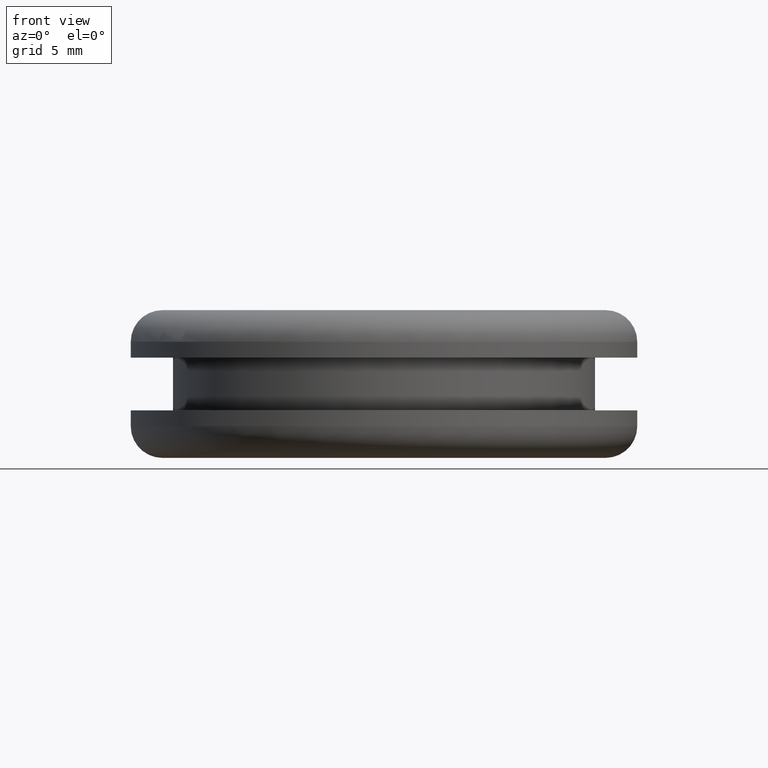
[diagram: clean part render]
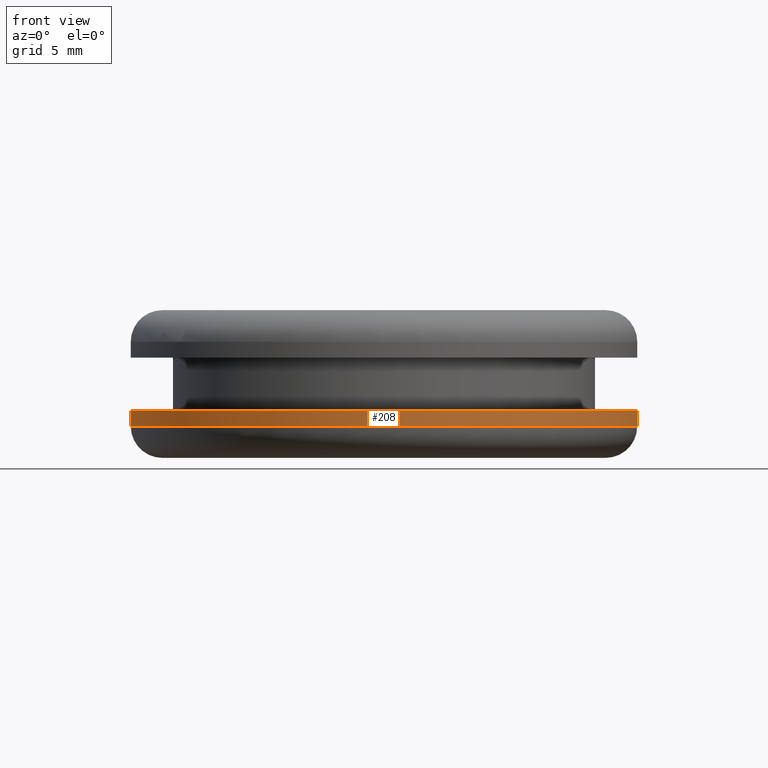
[diagram: same view with one face highlighted and labeled with its STEP entity id]
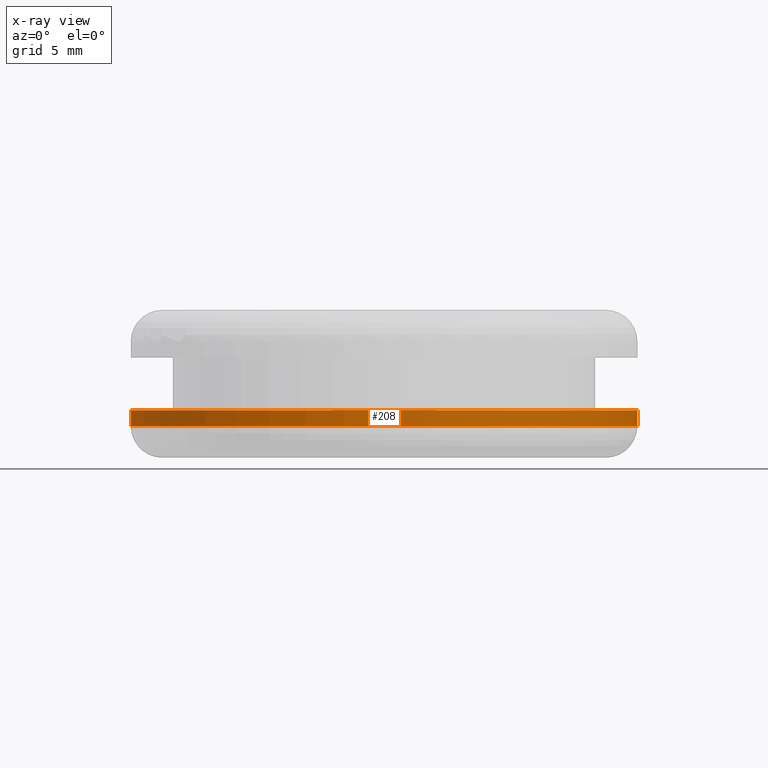
[diagram: x-ray of the same camera — body ghosted, the highlighted face saturated]
A machine part, front view. The second image highlights one B-rep face of the part: STEP entity #208.
The next image is the same camera in x-ray: the body ghosted, the highlighted face saturated — about 0% of this face is hidden behind the body in this view.
In plain terms, the highlighted cylindrical surface (partial cylindrical patch) has radius 12 mm, axis along (0, 0, -1).
Its self-contained STEP definition (entity closure, byte-faithful):
#1 = CARTESIAN_POINT ( 'NONE',  ( 104.8968217177672100, 0.0000000000000000000, 0.0000000000000000000 ) ) ;
#6 = VERTEX_POINT ( 'NONE', #177 ) ;
#17 = AXIS2_PLACEMENT_3D ( 'NONE', #190, #157, #387 ) ;
#24 = VERTEX_POINT ( 'NONE', #311 ) ;
#26 = CYLINDRICAL_SURFACE ( 'NONE', #347, 12.00000000000990500 ) ;
#35 = DIRECTION ( 'NONE',  ( 0.0000000000000000000, 0.0000000000000000000, -1.000000000000000000 ) ) ;
#39 = CARTESIAN_POINT ( 'NONE',  ( 116.8968217177771200, 1.469576158978035600E-015, 144.1094493936956000 ) ) ;
#100 = LINE ( 'NONE', #348, #179 ) ;
#110 = DIRECTION ( 'NONE',  ( 0.0000000000000000000, 0.0000000000000000000, -1.000000000000000000 ) ) ;
#113 = CIRCLE ( 'NONE', #17, 12.00000000000990500 ) ;
#138 = EDGE_LOOP ( 'NONE', ( #329, #161, #402, #455 ) ) ;
#157 = DIRECTION ( 'NONE',  ( 0.0000000000000000000, 0.0000000000000000000, -1.000000000000000000 ) ) ;
#159 = AXIS2_PLACEMENT_3D ( 'NONE', #371, #110, #288 ) ;
#161 = ORIENTED_EDGE ( 'NONE', *, *, #299, .T. ) ;
#177 = CARTESIAN_POINT ( 'NONE',  ( 92.89682171775730500, 0.0000000000000000000, 143.3594493936722100 ) ) ;
#179 = VECTOR ( 'NONE', #267, 1000.000000000000000 ) ;
#180 = VERTEX_POINT ( 'NONE', #228 ) ;
#190 = CARTESIAN_POINT ( 'NONE',  ( 104.8968217177672100, 0.0000000000000000000, 144.1094493936956000 ) ) ;
#208 = ADVANCED_FACE ( 'NONE', ( #424 ), #26, .T. ) ;
#228 = CARTESIAN_POINT ( 'NONE',  ( 116.8968217177771200, 1.469576158978035600E-015, 143.3594493936722100 ) ) ;
#267 = DIRECTION ( 'NONE',  ( 0.0000000000000000000, 0.0000000000000000000, -1.000000000000000000 ) ) ;
#272 = EDGE_CURVE ( 'NONE', #279, #180, #403, .T. ) ;
#279 = VERTEX_POINT ( 'NONE', #39 ) ;
#288 = DIRECTION ( 'NONE',  ( -1.000000000000000000, 0.0000000000000000000, 0.0000000000000000000 ) ) ;
#295 = VECTOR ( 'NONE', #380, 1000.000000000000000 ) ;
#299 = EDGE_CURVE ( 'NONE', #279, #24, #113, .T. ) ;
#311 = CARTESIAN_POINT ( 'NONE',  ( 92.89682171775730500, 0.0000000000000000000, 144.1094493936956000 ) ) ;
#323 = EDGE_CURVE ( 'NONE', #24, #6, #100, .T. ) ;
#329 = ORIENTED_EDGE ( 'NONE', *, *, #272, .F. ) ;
#347 = AXIS2_PLACEMENT_3D ( 'NONE', #1, #35, #462 ) ;
#348 = CARTESIAN_POINT ( 'NONE',  ( 92.89682171775730500, 0.0000000000000000000, 0.0000000000000000000 ) ) ;
#352 = EDGE_CURVE ( 'NONE', #180, #6, #377, .T. ) ;
#371 = CARTESIAN_POINT ( 'NONE',  ( 104.8968217177672100, 0.0000000000000000000, 143.3594493936722100 ) ) ;
#377 = CIRCLE ( 'NONE', #159, 12.00000000000990500 ) ;
#380 = DIRECTION ( 'NONE',  ( 0.0000000000000000000, 0.0000000000000000000, -1.000000000000000000 ) ) ;
#387 = DIRECTION ( 'NONE',  ( -1.000000000000000000, 0.0000000000000000000, 0.0000000000000000000 ) ) ;
#402 = ORIENTED_EDGE ( 'NONE', *, *, #323, .T. ) ;
#403 = LINE ( 'NONE', #431, #295 ) ;
#424 = FACE_OUTER_BOUND ( 'NONE', #138, .T. ) ;
#431 = CARTESIAN_POINT ( 'NONE',  ( 116.8968217177771200, 1.469576158978036200E-015, 0.0000000000000000000 ) ) ;
#455 = ORIENTED_EDGE ( 'NONE', *, *, #352, .F. ) ;
#462 = DIRECTION ( 'NONE',  ( -1.000000000000000000, 0.0000000000000000000, 0.0000000000000000000 ) ) ;